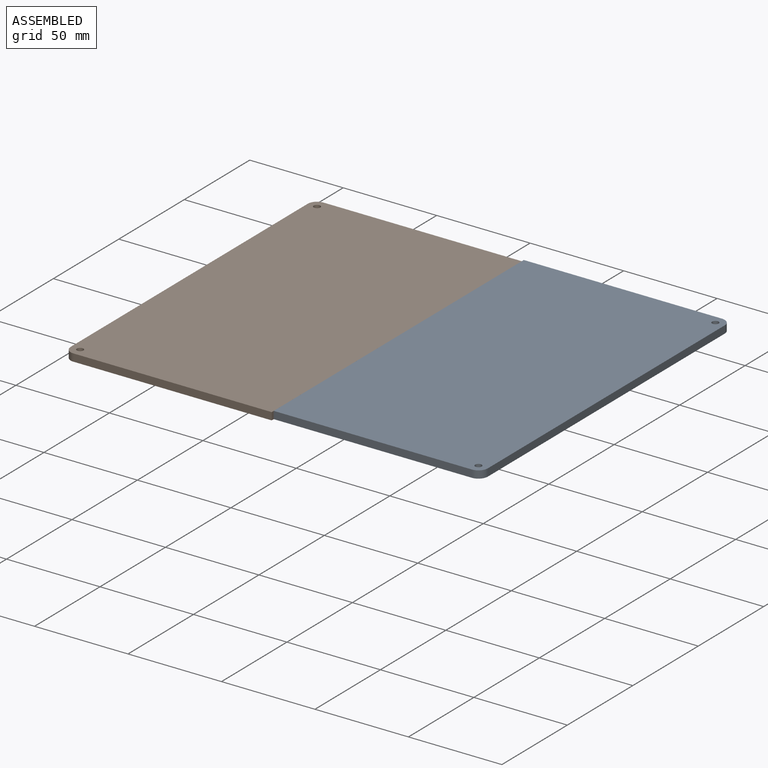
[diagram: assembled view]
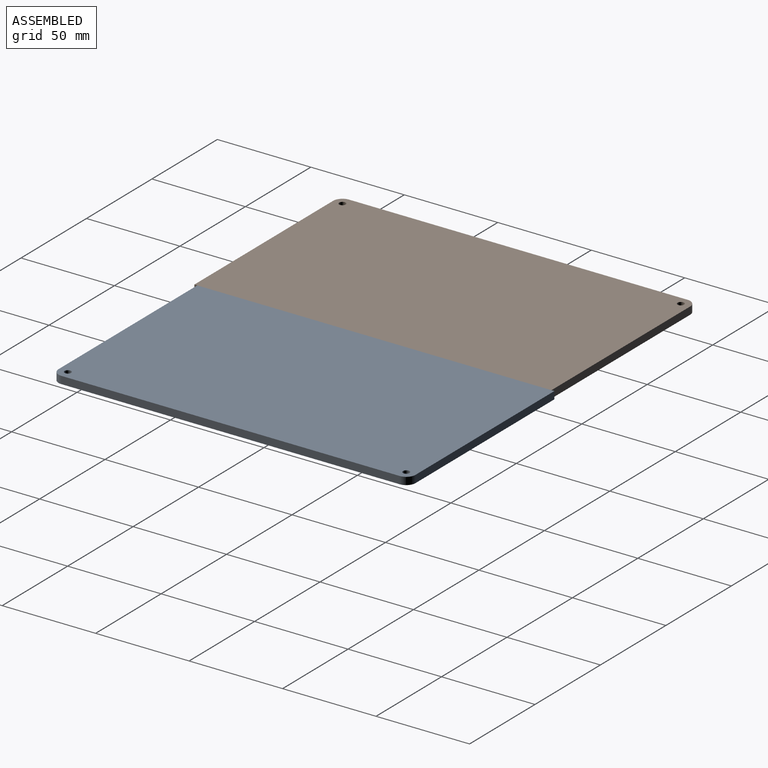
[diagram: assembled view, second angle]
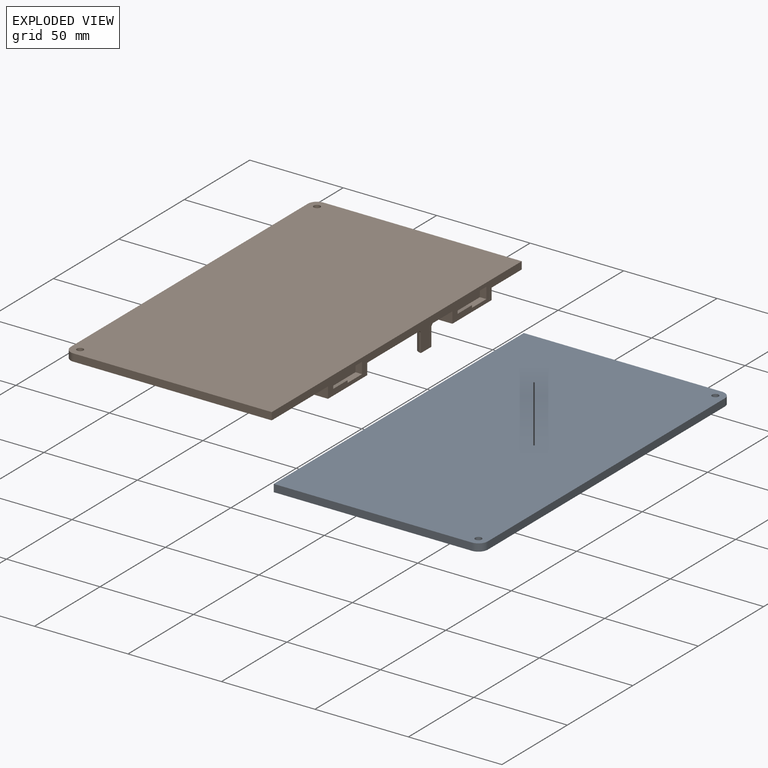
[diagram: exploded view]
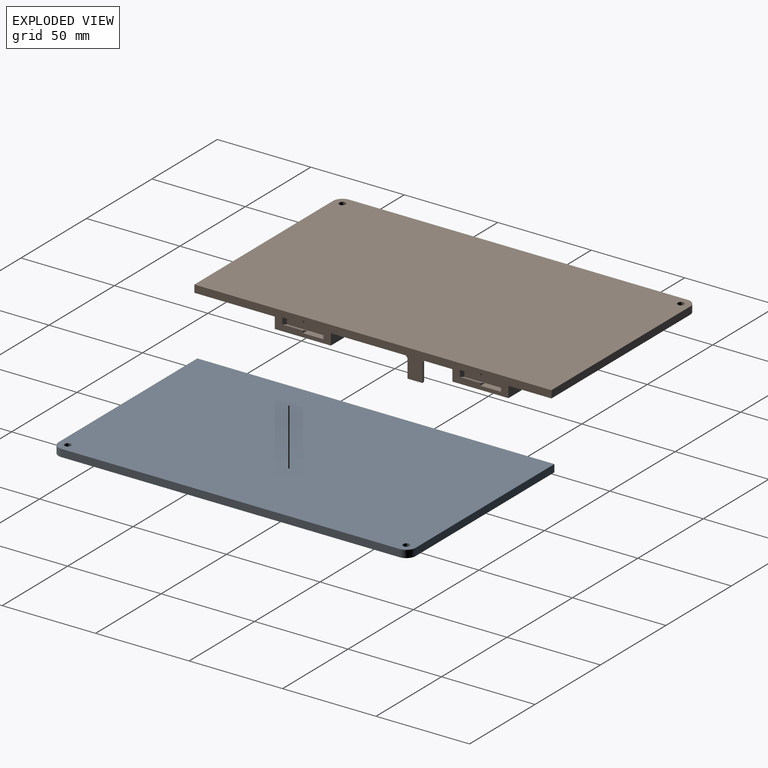
[diagram: exploded view, second angle]
ASSEMBLY  parts=2 mates=2
PART A: 34 faces, bbox 114x191x15 mm
  f0: plane 191x15mm, normal (-1,0,0), area 1156.7mm2, adj f1,f2,f4,f7,f10,f11,f15,f16
  f1: plane 191x111mm, normal (0,0,-1), area 20453.2mm2, adj f0,f3,f4,f5,f6,f7,f8,f9
  f2: plane 191x111mm, normal (0,0,1), area 21171mm2, adj f0,f3,f4,f5,f6,f7,f8,f9
  f3: cylinder r=5mm len=5mm, axis (0,0,-1), area 31.4mm2, adj f1,f2,f4,f6
  f4: plane 106x4mm, normal (0,1,0), area 424mm2, adj f0,f1,f2,f3
  f5: cylinder r=5mm len=5mm, axis (0,0,1), area 31.4mm2, adj f1,f2,f6,f7
  f6: plane 181x4mm, normal (1,0,0), area 724mm2, adj f1,f2,f3,f5
  f7: plane 106x4mm, normal (0,-1,0), area 424mm2, adj f0,f1,f2,f5
  f8: cylinder r=1.75mm len=4mm, axis (0,0,1), area 44mm2, adj f1,f2
  f9: cylinder r=1.75mm len=4mm, axis (0,0,1), area 44mm2, adj f1,f2
  f10: plane 8x4mm, normal (0,0,-1), area 25.1mm2, adj f0,f11
  f11: cylinder r=4mm len=10mm, axis (0,0,1), area 125.7mm2, adj f0,f10,f15
  f12: plane 8x8mm, normal (0,0,-1), area 50.3mm2, adj f13
  f13: cylinder r=4mm len=10mm, axis (0,0,1), area 251.3mm2, adj f12,f14
  f14: cone r=5mm half-angle=45deg, axis (0,0,1), area 40mm2, adj f1,f13
  f15: cone r=5mm half-angle=45deg, axis (0,0,1), area 20mm2, adj f0,f1,f11
  f16: plane 10x6mm, normal (0,-1,0), area 60mm2, adj f0,f1,f18,f19
  f17: plane 10x6mm, normal (0,1,0), area 60mm2, adj f0,f1,f18,f19
  f18: plane 30x6mm, normal (1,0,0), area 180mm2, adj f1,f16,f17,f19
  f19: plane 30x10mm, normal (0,0,-1), area 300mm2, adj f0,f16,f17,f18
  f20: plane 10x6mm, normal (0,-1,0), area 60mm2, adj f0,f1,f22,f23
  f21: plane 10x6mm, normal (0,1,0), area 60mm2, adj f0,f1,f22,f23
  f22: plane 30x6mm, normal (1,0,0), area 180mm2, adj f1,f20,f21,f23
  f23: plane 30x10mm, normal (0,0,-1), area 300mm2, adj f0,f20,f21,f22
  f24: plane 10x3mm, normal (0.34,0,0.94), area 31.9mm2, adj f0,f25,f27,f28
  f25: plane 10x5mm, normal (-1,0,0), area 50mm2, adj f24,f26,f27,f28
  f26: plane 10x3mm, normal (0.34,0,-0.94), area 31.9mm2, adj f0,f25,f27,f28
  f27: plane 5x3mm, normal (0,1,0), area 11.7mm2, adj f0,f24,f25,f26
  f28: plane 5x3mm, normal (0,-1,0), area 11.7mm2, adj f0,f24,f25,f26
  f29: plane 10x3mm, normal (0.34,0,0.94), area 31.9mm2, adj f0,f30,f32,f33
  f30: plane 10x5mm, normal (-1,0,0), area 50mm2, adj f29,f31,f32,f33
  f31: plane 10x3mm, normal (0.34,0,-0.94), area 31.9mm2, adj f0,f30,f32,f33
  f32: plane 5x3mm, normal (0,1,0), area 11.7mm2, adj f0,f29,f30,f31
  f33: plane 5x3mm, normal (0,-1,0), area 11.7mm2, adj f0,f29,f30,f31
PART B: 42 faces, bbox 111x191x15 mm
  f0: plane 191x15mm, normal (1,0,0), area 1005.1mm2, adj f1,f2,f3,f12,f13,f14,f15,f16
  f1: plane 11x3.5mm, normal (-0.34,0,-0.94), area 41mm2, adj f0,f35,f37,f41
  f2: plane 11x3.5mm, normal (-0.34,0,0.94), area 41mm2, adj f0,f35,f37,f38
  f3: plane 191x111mm, normal (0,0,-1), area 20453.2mm2, adj f0,f6,f7,f8,f9,f10,f11,f12
  f4: plane 8x8mm, normal (0,0,-1), area 50.3mm2, adj f5
  f5: cylinder r=4mm len=10mm, axis (0,0,1), area 251.3mm2, adj f4,f6
  f6: cone r=5mm half-angle=45deg, axis (0,0,1), area 40mm2, adj f3,f5
  f7: plane 181x4mm, normal (-1,0,0), area 724mm2, adj f3,f10,f11,f17
  f8: cylinder r=1.75mm len=4mm, axis (0,0,1), area 44mm2, adj f3,f17
  f9: cylinder r=1.75mm len=4mm, axis (0,0,1), area 44mm2, adj f3,f17
  f10: cylinder r=5mm len=5mm, axis (0,0,1), area 31.4mm2, adj f3,f7,f15,f17
  f11: cylinder r=5mm len=5mm, axis (0,0,-1), area 31.4mm2, adj f3,f7,f16,f17
  f12: cone r=5mm half-angle=45deg, axis (0,0,1), area 20mm2, adj f0,f3,f13
  f13: cylinder r=4mm len=10mm, axis (0,0,1), area 125.7mm2, adj f0,f12,f14
  f14: plane 8x4mm, normal (0,0,-1), area 25.1mm2, adj f0,f13
  f15: plane 106x4mm, normal (0,1,0), area 424mm2, adj f0,f3,f10,f17
  f16: plane 106x4mm, normal (0,-1,0), area 424mm2, adj f0,f3,f11,f17
  f17: plane 191x111mm, normal (0,0,1), area 21171mm2, adj f0,f7,f8,f9,f10,f11,f15,f16
  f18: plane 10x6mm, normal (0,1,0), area 60mm2, adj f0,f3,f20,f21
  f19: plane 10x6mm, normal (0,-1,0), area 60mm2, adj f0,f3,f20,f21
  f20: plane 30x6mm, normal (-1,0,0), area 180mm2, adj f3,f18,f19,f21
  f21: plane 30x10mm, normal (0,0,-1), area 300mm2, adj f0,f18,f19,f20
  f22: plane 10x6mm, normal (0,1,0), area 60mm2, adj f0,f3,f24,f25
  f23: plane 10x6mm, normal (0,-1,0), area 60mm2, adj f0,f3,f24,f25
  f24: plane 30x6mm, normal (-1,0,0), area 180mm2, adj f3,f22,f23,f25
  f25: plane 30x10mm, normal (0,0,-1), area 300mm2, adj f0,f22,f23,f24
  f26: plane 11x3.5mm, normal (-0.34,0,-0.94), area 41mm2, adj f0,f27,f30,f34
  f27: plane 22x6mm, normal (1,0,0), area 132mm2, adj f26,f28,f29,f30,f32,f33
  f28: plane 11x3.5mm, normal (-0.34,0,0.94), area 41mm2, adj f0,f27,f30,f31
  f29: plane 6x3.5mm, normal (0,-1,0), area 21mm2, adj f0,f27,f32,f33
  f30: plane 6x3.5mm, normal (0,1,0), area 16.5mm2, adj f0,f26,f27,f28
  f31: plane 3.5x1.27mm, normal (0,1,0), area 2.2mm2, adj f0,f28,f32
  f32: plane 11x3.5mm, normal (0,0,1), area 38.5mm2, adj f0,f27,f29,f31
  f33: plane 11x3.5mm, normal (0,0,-1), area 38.5mm2, adj f0,f27,f29,f34
  f34: plane 3.5x1.27mm, normal (0,1,0), area 2.2mm2, adj f0,f26,f33
  f35: plane 22x6mm, normal (1,0,0), area 132mm2, adj f1,f2,f36,f37,f39,f40
  f36: plane 6x3.5mm, normal (0,-1,0), area 21mm2, adj f0,f35,f39,f40
  f37: plane 6x3.5mm, normal (0,1,0), area 16.5mm2, adj f0,f1,f2,f35
  f38: plane 3.5x1.27mm, normal (0,1,0), area 2.2mm2, adj f0,f2,f39
  f39: plane 11x3.5mm, normal (0,0,1), area 38.5mm2, adj f0,f35,f36,f38
  f40: plane 11x3.5mm, normal (0,0,-1), area 38.5mm2, adj f0,f35,f36,f41
  f41: plane 3.5x1.27mm, normal (0,1,0), area 2.2mm2, adj f0,f1,f40
PLACE A t=(-24.9,42.42,-29.12)mm
PLACE B t=(-24.9,40.87,-29.12)mm
MATE planar B.f0 <-> A.f0  axis (1,0,0) through (-24.9,67.87,10.38)mm
MATE planar B.f17 <-> A.f2  axis (0,0,1) through (-80.32,40.87,14.88)mm
